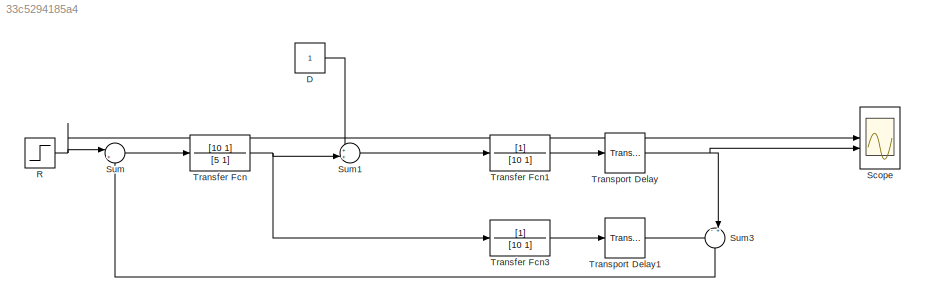
MODEL slx_33c5294185a4
KIND model
CONFIG AbsTol = auto
CONFIG EnableMultiTasking = off
CONFIG FixedStep = auto
CONFIG MaxStep = auto
CONFIG MinStep = auto
CONFIG RelTol = 1e-3
CONFIG SampleTimeConstraint = Unconstrained
CONFIG SolverName = VariableStepAuto
CONFIG StartTime = 0.0
CONFIG StopTime = 400
BLOCK [Constant] D
BLOCK [Step] R
  SampleTime = 0
BLOCK [Scope] Scope
  Floating = off
  NumInputPorts = 2
  ScopeSpecificationString = Simulink.scopes.TimeScopeBlockCfg('CurrentConfiguration', extmgr.ConfigurationSet(extmgr.Configuration('Core','General UI',true,'FigureColor',[1 1 1]),extmgr.Configuration('Core','Source UI',true),extmgr.Configuration('Sources','WiredSimulink',true),extmgr.Configuration('Visuals','Time Domain',true,'SerializedDisplays',{struct('MinYLimReal','-0.20865','MaxYLimReal','1.87789','YLabelReal','','MinYL...<+1645ch>
BLOCK [Sum] Sum
  Inputs = |+-
BLOCK [Sum] Sum1
  Inputs = ++|
BLOCK [Sum] Sum3
  Inputs = -+|
  NameLocation = left
BLOCK [TransferFcn] Transfer Fcn
  Denominator = [5 1]
  Numerator = [10 1]
BLOCK [TransferFcn] Transfer Fcn1
  Denominator = [10 1]
BLOCK [TransferFcn] Transfer Fcn3
  Denominator = [10 1]
BLOCK [TransportDelay] Transport Delay
  DelayTime = 10
BLOCK [TransportDelay] Transport Delay1
  DelayTime = 8
LINE D:1 -> Sum1:1
NET R:1 -> Scope:1, Sum:1
LINE Sum1:1 -> Transfer Fcn1:1
LINE Sum3:1 -> Sum:2
LINE Sum:1 -> Transfer Fcn:1
LINE Transfer Fcn1:1 -> Transport Delay:1
LINE Transfer Fcn3:1 -> Transport Delay1:1
NET Transfer Fcn:1 -> Sum1:2, Transfer Fcn3:1
LINE Transport Delay1:1 -> Sum3:1
NET Transport Delay:1 -> Scope:2, Sum3:2
note: NET lines group one-source signal fan-out (src -> all destinations, sorted); 1:1 wires keep LINE
